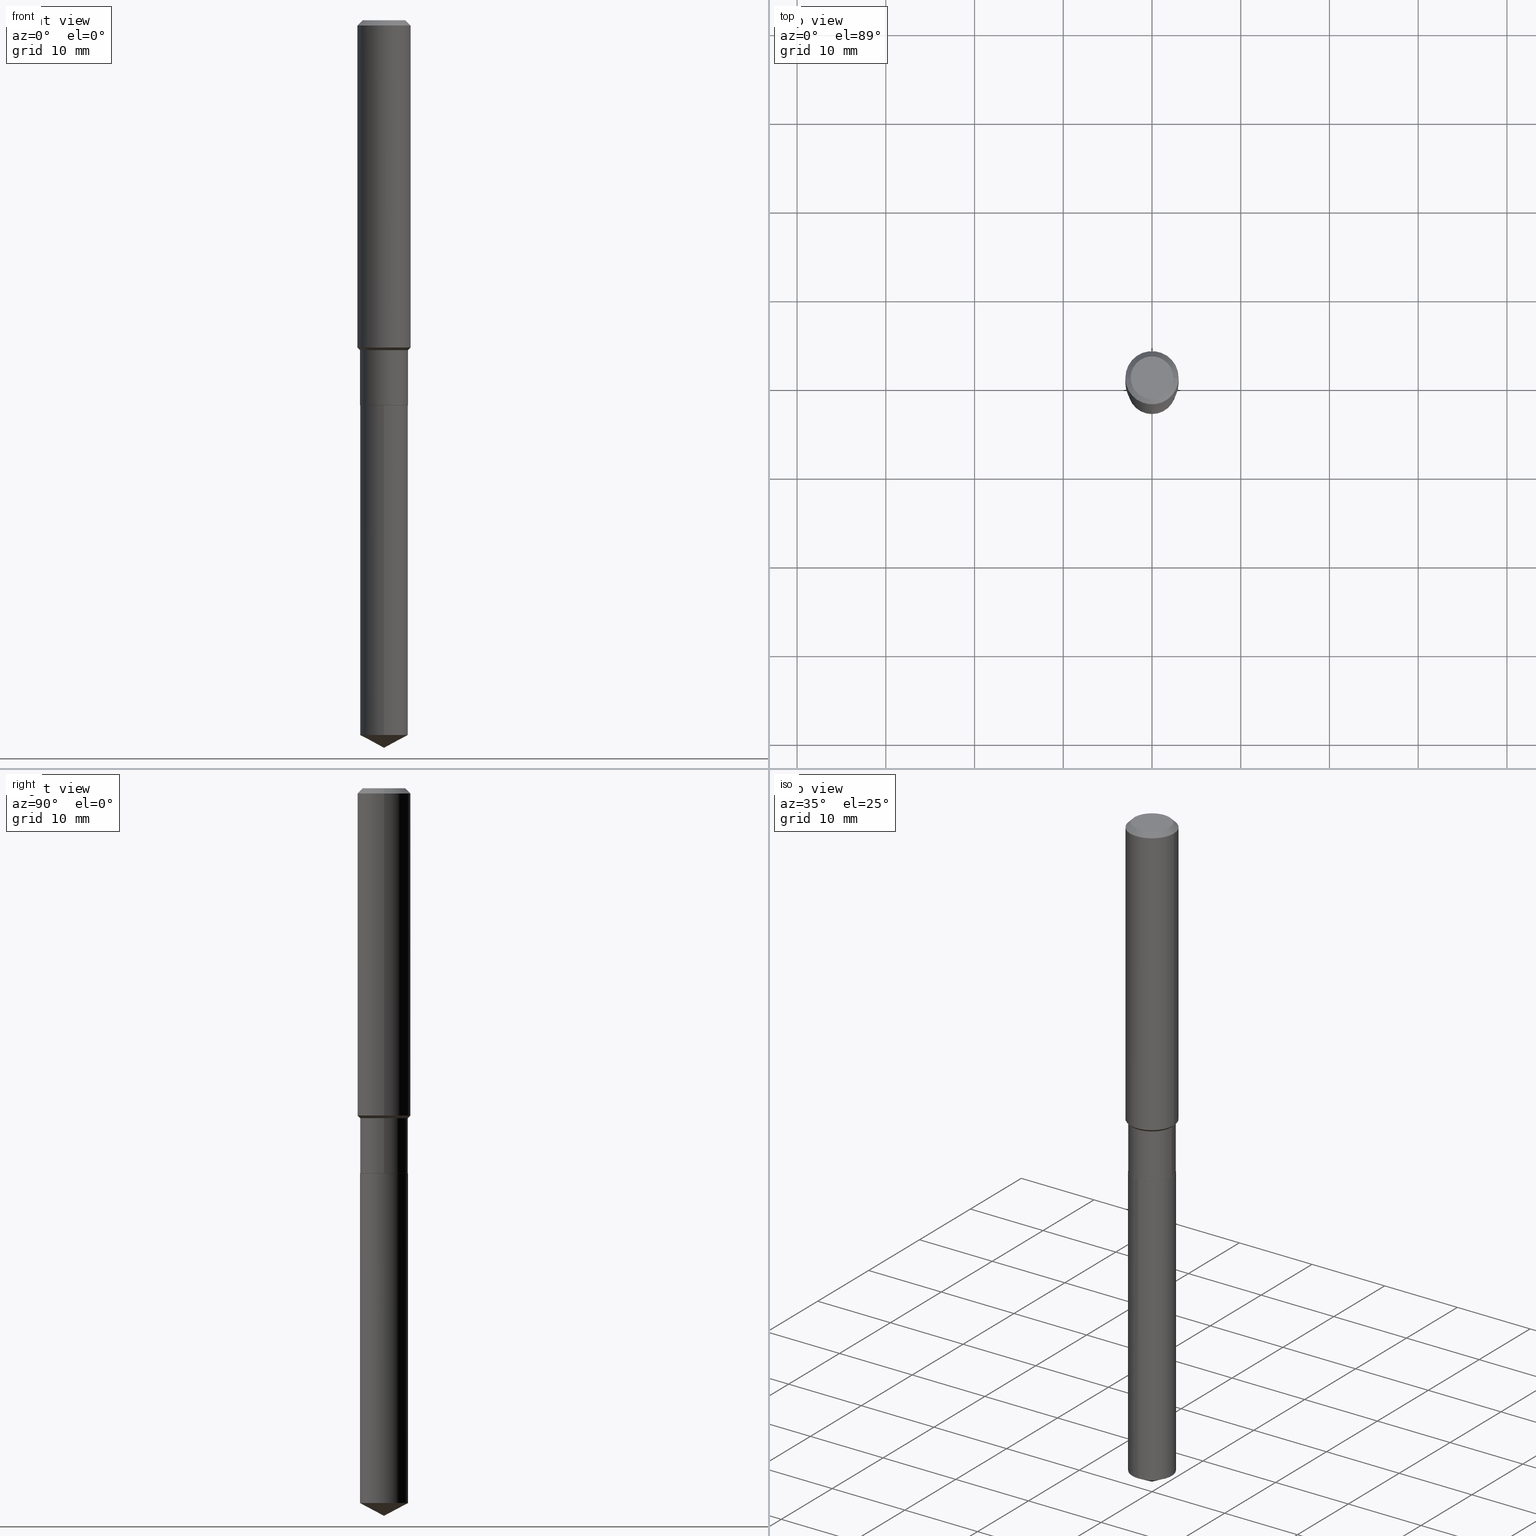
[diagram: canonical four-view strip — front | top / right | iso, engineering-drawing reading convention]
A machine part, canonical four-view strip (front | top / right | iso — engineering-drawing reading convention). The complete STEP part file that produces these views, byte-faithful:
ISO-10303-21;
HEADER;
FILE_DESCRIPTION (( 'STEP AP203' ),
    '1' );
FILE_NAME ('65024.STEP',
    '2024-04-24T19:54:59',
    ( '' ),
    ( '' ),
    'SwSTEP 2.0',
    'SolidWorks 2023',
    '' );
FILE_SCHEMA (( 'CONFIG_CONTROL_DESIGN' ));
ENDSEC;

DATA;
#1 = CLOSED_SHELL ( 'NONE', ( #170, #11, #102, #52, #485, #128, #354, #131, #418, #204, #32, #429 ) ) ;
#2 = CIRCLE ( 'NONE', #230, 0.1063000000000000056 ) ;
#3 = EDGE_LOOP ( 'NONE', ( #27, #325, #284 ) ) ;
#4 = APPROVAL_PERSON_ORGANIZATION ( #352, #110, #319 ) ;
#5 = DIRECTION ( 'NONE',  ( -6.982962677686267499E-15, -1.000000000000000000, 3.541896320645544303E-15 ) ) ;
#6 = PERSON_AND_ORGANIZATION ( #465, #426 ) ;
#7 = ORIENTED_EDGE ( 'NONE', *, *, #51, .F. ) ;
#8 = FACE_OUTER_BOUND ( 'NONE', #237, .T. ) ;
#9 = LINE ( 'NONE', #266, #476 ) ;
#10 = PERSON_AND_ORGANIZATION ( #465, #426 ) ;
#11 = ADVANCED_FACE ( 'NONE', ( #202 ), #342, .T. ) ;
#12 = DIRECTION ( 'NONE',  ( -2.445509504775063529E-29, 3.491423056145950316E-15, 1.000000000000000000 ) ) ;
#13 = AXIS2_PLACEMENT_3D ( 'NONE', #375, #288, #152 ) ;
#14 = COORDINATED_UNIVERSAL_TIME_OFFSET ( 5, 0, .BEHIND. ) ;
#15 = CC_DESIGN_APPROVAL ( #470, ( #22 ) ) ;
#16 = DATE_AND_TIME ( #136, #272 ) ;
#17 = CARTESIAN_POINT ( 'NONE',  ( 4.716267017698007905E-46, -6.733579360998555036E-32, -1.928573779297252010E-17 ) ) ;
#18 = DIRECTION ( 'NONE',  ( 0.000000000000000000, 0.000000000000000000, 1.000000000000000000 ) ) ;
#19 = PRODUCT_DEFINITION ( 'UNKNOWN', '', #72, #135 ) ;
#20 = AXIS2_PLACEMENT_3D ( 'NONE', #162, #383, #310 ) ;
#21 = DIRECTION ( 'NONE',  ( 2.445468806185136597E-29, -3.491481338843145583E-15, -1.000000000000000000 ) ) ;
#22 = SECURITY_CLASSIFICATION ( '', '', #359 ) ;
#23 = ORIENTED_EDGE ( 'NONE', *, *, #66, .T. ) ;
#24 = ORIENTED_EDGE ( 'NONE', *, *, #289, .T. ) ;
#25 = CC_DESIGN_PERSON_AND_ORGANIZATION_ASSIGNMENT ( #460, #200, ( #19 ) ) ;
#26 = CARTESIAN_POINT ( 'NONE',  ( -7.422889326380084277E-16, -0.1063000000000059592, -1.708599999999999897 ) ) ;
#27 = ORIENTED_EDGE ( 'NONE', *, *, #173, .F. ) ;
#28 = ORIENTED_EDGE ( 'NONE', *, *, #349, .F. ) ;
#29 = CIRCLE ( 'NONE', #363, 0.1063000000000000056 ) ;
#30 = CARTESIAN_POINT ( 'NONE',  ( 4.178328002247924925E-29, -5.965545015547399442E-15, -1.708600000000000119 ) ) ;
#31 = VERTEX_POINT ( 'NONE', #26 ) ;
#32 = ADVANCED_FACE ( 'NONE', ( #139 ), #469, .F. ) ;
#33 = EDGE_CURVE ( 'NONE', #210, #95, #144, .T. ) ;
#34 = AXIS2_PLACEMENT_3D ( 'NONE', #209, #179, #341 ) ;
#35 = CARTESIAN_POINT ( 'NONE',  ( 0.1180999999999999966, -8.926936027602933910E-16, -0.02362000000000014088 ) ) ;
#36 = VECTOR ( 'NONE', #381, 39.37007874015748143 ) ;
#37 = FACE_OUTER_BOUND ( 'NONE', #244, .T. ) ;
#38 = DIRECTION ( 'NONE',  ( -2.445509504775063529E-29, 3.491423056145950316E-15, 1.000000000000000000 ) ) ;
#39 = DIRECTION ( 'NONE',  ( -2.445468806185136877E-29, 3.491481338843145188E-15, 1.000000000000000000 ) ) ;
#40 = DIRECTION ( 'NONE',  ( 1.000000000000000000, -6.982962677686264344E-15, 0.000000000000000000 ) ) ;
#41 = FACE_OUTER_BOUND ( 'NONE', #68, .T. ) ;
#42 = COORDINATED_UNIVERSAL_TIME_OFFSET ( 5, 0, .BEHIND. ) ;
#43 = DIRECTION ( 'NONE',  ( -2.445509504775063529E-29, 3.491423056145950316E-15, 1.000000000000000000 ) ) ;
#44 = DIRECTION ( 'NONE',  ( -2.445468806185136877E-29, 3.491481338843145188E-15, 1.000000000000000000 ) ) ;
#45 = CARTESIAN_POINT ( 'NONE',  ( 4.178328002247924925E-29, -5.965545015547399442E-15, -1.708600000000000119 ) ) ;
#46 = LINE ( 'NONE', #263, #138 ) ;
#47 = CONICAL_SURFACE ( 'NONE', #190, 0.1062999999999999640, 0.7853981633974511656 ) ;
#48 = COORDINATED_UNIVERSAL_TIME_OFFSET ( 5, 0, .BEHIND. ) ;
#49 = PERSON_AND_ORGANIZATION ( #465, #426 ) ;
#50 = CALENDAR_DATE ( 2024, 24, 4 ) ;
#51 = EDGE_CURVE ( 'NONE', #449, #112, #188, .T. ) ;
#52 = ADVANCED_FACE ( 'NONE', ( #114 ), #55, .T. ) ;
#53 = APPROVAL_STATUS ( 'not_yet_approved' ) ;
#54 = ORIENTED_EDGE ( 'NONE', *, *, #311, .F. ) ;
#55 = CONICAL_SURFACE ( 'NONE', #332, 0.1062999999999999640, 0.7853981633974511656 ) ;
#56 = CONICAL_SURFACE ( 'NONE', #175, 0.1058000000000000052, 0.7853981633975507526 ) ;
#57 = ORIENTED_EDGE ( 'NONE', *, *, #349, .T. ) ;
#58 = ORIENTED_EDGE ( 'NONE', *, *, #315, .F. ) ;
#59 = ORIENTED_EDGE ( 'NONE', *, *, #395, .T. ) ;
#60 = EDGE_LOOP ( 'NONE', ( #322, #57, #296, #361 ) ) ;
#61 = DIRECTION ( 'NONE',  ( 0.7071067811865495711, -2.468850131082277965E-15, 0.7071067811865454633 ) ) ;
#62 = LOCAL_TIME ( 15, 54, 59.00000000000000000, #48 ) ;
#63 = EDGE_LOOP ( 'NONE', ( #140, #478 ) ) ;
#64 = CARTESIAN_POINT ( 'NONE',  ( 0.1058000000000000052, -6.704342466846605785E-15, -1.708600000000000119 ) ) ;
#65 = DIRECTION ( 'NONE',  ( -1.000000000000000000, 6.982962677686265922E-15, -4.876176775795935793E-29 ) ) ;
#66 = EDGE_CURVE ( 'NONE', #449, #279, #337, .T. ) ;
#67 = CARTESIAN_POINT ( 'NONE',  ( 0.09447999999999998066, -7.704367267948738690E-16, -1.928573779296752193E-17 ) ) ;
#68 = EDGE_LOOP ( 'NONE', ( #103, #267 ) ) ;
#69 = DIRECTION ( 'NONE',  ( 2.445468806185136597E-29, -3.491481338843145583E-15, -1.000000000000000000 ) ) ;
#70 = DIRECTION ( 'NONE',  ( 6.273719981627772387E-15, 0.8829475928589306521, 0.4694715627858840334 ) ) ;
#71 = CIRCLE ( 'NONE', #240, 0.1058000000000000052 ) ;
#72 = PRODUCT_DEFINITION_FORMATION_WITH_SPECIFIED_SOURCE ( 'ANY', '', #374, .NOT_KNOWN. ) ;
#73 = ORIENTED_EDGE ( 'NONE', *, *, #473, .F. ) ;
#74 = CARTESIAN_POINT ( 'NONE',  ( 7.756546856809809228E-29, -1.107412291490118614E-14, -3.171779287414385529 ) ) ;
#75 = CARTESIAN_POINT ( 'NONE',  ( 0.1058000000000000052, -6.704342466846605785E-15, -1.708600000000000119 ) ) ;
#76 = LINE ( 'NONE', #224, #271 ) ;
#77 = DIRECTION ( 'NONE',  ( -2.445468806185136597E-29, 3.491481338843145583E-15, 1.000000000000000000 ) ) ;
#78 = APPROVAL_ROLE ( '' ) ;
#79 = DIRECTION ( 'NONE',  ( -2.445509504775063529E-29, 3.491423056145950316E-15, 1.000000000000000000 ) ) ;
#80 = CARTESIAN_POINT ( 'NONE',  ( 5.776197320209327532E-31, -8.246878922347559293E-17, -0.02362000000000014088 ) ) ;
#81 = CONICAL_SURFACE ( 'NONE', #146, 0.1058000000000000052, 0.7853981633975507526 ) ;
#82 = APPROVAL_ROLE ( '' ) ;
#83 = CARTESIAN_POINT ( 'NONE',  ( 0.1181000000000001632, -5.895366240636649477E-15, -1.452299999999999924 ) ) ;
#84 = CC_DESIGN_PERSON_AND_ORGANIZATION_ASSIGNMENT ( #10, #389, ( #374 ) ) ;
#85 = DATE_TIME_ROLE ( 'creation_date' ) ;
#86 = LINE ( 'NONE', #161, #36 ) ;
#87 = APPROVAL_DATE_TIME ( #423, #470 ) ;
#88 = AXIS2_PLACEMENT_3D ( 'NONE', #427, #18, #90 ) ;
#89 = EDGE_CURVE ( 'NONE', #231, #358, #443, .T. ) ;
#90 = DIRECTION ( 'NONE',  ( 1.000000000000000000, 0.000000000000000000, 0.000000000000000000 ) ) ;
#91 = CARTESIAN_POINT ( 'NONE',  ( -0.1062999999999999640, -4.782531623426127570E-15, -1.464100000000000179 ) ) ;
#92 = ORIENTED_EDGE ( 'NONE', *, *, #238, .T. ) ;
#93 = ORIENTED_EDGE ( 'NONE', *, *, #483, .F. ) ;
#94 = EDGE_CURVE ( 'NONE', #95, #246, #109, .T. ) ;
#95 = VERTEX_POINT ( 'NONE', #407 ) ;
#96 = CIRCLE ( 'NONE', #357, 0.1180999999999999966 ) ;
#97 = ORIENTED_EDGE ( 'NONE', *, *, #160, .F. ) ;
#98 = VERTEX_POINT ( 'NONE', #326 ) ;
#99 = EDGE_LOOP ( 'NONE', ( #206, #360 ) ) ;
#100 = CONICAL_SURFACE ( 'NONE', #168, 0.1180999999999999966, 0.7853981633974460586 ) ;
#101 = CC_DESIGN_APPROVAL ( #110, ( #19 ) ) ;
#102 = ADVANCED_FACE ( 'NONE', ( #371 ), #214, .T. ) ;
#103 = ORIENTED_EDGE ( 'NONE', *, *, #382, .T. ) ;
#104 = DIRECTION ( 'NONE',  ( 1.000000000000000000, -6.982962677686263555E-15, 0.000000000000000000 ) ) ;
#105 = CYLINDRICAL_SURFACE ( 'NONE', #353, 0.1063000000000000056 ) ;
#106 = PRODUCT_DEFINITION_SHAPE ( 'NONE', 'NONE',  #19 ) ;
#107 = VERTEX_POINT ( 'NONE', #447 ) ;
#108 = DIRECTION ( 'NONE',  ( 1.000000000000000000, -6.982962677686263555E-15, 0.000000000000000000 ) ) ;
#109 = LINE ( 'NONE', #177, #391 ) ;
#110 = APPROVAL ( #53, 'UNSPECIFIED' ) ;
#111 = FACE_OUTER_BOUND ( 'NONE', #60, .T. ) ;
#112 = VERTEX_POINT ( 'NONE', #91 ) ;
#113 = DIRECTION ( 'NONE',  ( 2.445509504775063529E-29, -3.491423056145949921E-15, -1.000000000000000000 ) ) ;
#114 = FACE_OUTER_BOUND ( 'NONE', #433, .T. ) ;
#115 = FACE_OUTER_BOUND ( 'NONE', #390, .T. ) ;
#116 = CC_DESIGN_PERSON_AND_ORGANIZATION_ASSIGNMENT ( #49, #346, ( #22 ) ) ;
#117 = DIRECTION ( 'NONE',  ( -2.445468806185136597E-29, 3.491481338843145583E-15, 1.000000000000000000 ) ) ;
#118 = FACE_OUTER_BOUND ( 'NONE', #208, .T. ) ;
#119 = MANIFOLD_SOLID_BREP ( 'Body-Move/Copy2[1]', #270 ) ;
#120 = ORIENTED_EDGE ( 'NONE', *, *, #193, .T. ) ;
#121 = DIRECTION ( 'NONE',  ( 6.982962677686265922E-15, 1.000000000000000000, -3.491423056145949921E-15 ) ) ;
#122 = CARTESIAN_POINT ( 'NONE',  ( 4.178328002247924925E-29, -5.965545015547399442E-15, -1.708600000000000119 ) ) ;
#123 = DIRECTION ( 'NONE',  ( -2.445468806185136597E-29, 3.491481338843145583E-15, 1.000000000000000000 ) ) ;
#124 = DIRECTION ( 'NONE',  ( 1.000000000000000000, -6.982962677686264344E-15, 0.000000000000000000 ) ) ;
#125 = EDGE_CURVE ( 'NONE', #231, #98, #239, .T. ) ;
#126 = VECTOR ( 'NONE', #490, 39.37007874015748143 ) ;
#127 = AXIS2_PLACEMENT_3D ( 'NONE', #379, #159, #5 ) ;
#128 = ADVANCED_FACE ( 'NONE', ( #408 ), #189, .T. ) ;
#129 = DIRECTION ( 'NONE',  ( 1.000000000000000000, -6.982962677686270655E-15, 0.000000000000000000 ) ) ;
#130 = PERSON_AND_ORGANIZATION ( #465, #426 ) ;
#131 = ADVANCED_FACE ( 'NONE', ( #338 ), #225, .T. ) ;
#132 = PERSON_AND_ORGANIZATION ( #465, #426 ) ;
#133 = PRODUCT_RELATED_PRODUCT_CATEGORY ( 'detail', '', ( #374 ) ) ;
#134 = ORIENTED_EDGE ( 'NONE', *, *, #350, .F. ) ;
#135 = DESIGN_CONTEXT ( 'detailed design', #365, 'design' ) ;
#136 = CALENDAR_DATE ( 2024, 24, 4 ) ;
#137 = ORIENTED_EDGE ( 'NONE', *, *, #402, .F. ) ;
#138 = VECTOR ( 'NONE', #269, 39.37007874015748143 ) ;
#139 = FACE_OUTER_BOUND ( 'NONE', #63, .T. ) ;
#140 = ORIENTED_EDGE ( 'NONE', *, *, #125, .F. ) ;
#141 = CARTESIAN_POINT ( 'NONE',  ( 3.580410879135658789E-29, -5.111877828200250276E-15, -1.464100000000000179 ) ) ;
#142 = EDGE_CURVE ( 'NONE', #205, #246, #377, .T. ) ;
#143 = ORIENTED_EDGE ( 'NONE', *, *, #441, .T. ) ;
#144 = CIRCLE ( 'NONE', #401, 0.09447999999999998066 ) ;
#145 = DIRECTION ( 'NONE',  ( 1.000000000000000000, -6.982962677686263555E-15, 0.000000000000000000 ) ) ;
#146 = AXIS2_PLACEMENT_3D ( 'NONE', #194, #453, #489 ) ;
#147 = CYLINDRICAL_SURFACE ( 'NONE', #13, 0.1063000000000000056 ) ;
#148 = CARTESIAN_POINT ( 'NONE',  ( 7.553069281130638457E-16, 0.1062999999999889034, -3.171779287414385973 ) ) ;
#149 = CARTESIAN_POINT ( 'NONE',  ( 7.894839553790867022E-29, -1.127136105215597106E-14, -3.228299999999999947 ) ) ;
#150 = ORIENTED_EDGE ( 'NONE', *, *, #142, .F. ) ;
#151 = DIRECTION ( 'NONE',  ( -6.982962677686265922E-15, -1.000000000000000000, 2.569941668545873170E-15 ) ) ;
#152 = DIRECTION ( 'NONE',  ( -6.982962677686265922E-15, -1.000000000000000000, 2.569941668545873170E-15 ) ) ;
#153 = CARTESIAN_POINT ( 'NONE',  ( 7.894838334265338485E-29, -1.127136105215597106E-14, -3.228299999999999947 ) ) ;
#154 = CARTESIAN_POINT ( 'NONE',  ( 0.000000000000000000, 0.000000000000000000, 0.000000000000000000 ) ) ;
#155 = AXIS2_PLACEMENT_3D ( 'NONE', #306, #12, #422 ) ;
#156 = VERTEX_POINT ( 'NONE', #292 ) ;
#157 = CARTESIAN_POINT ( 'NONE',  ( 0.1062999999999999640, -5.854166760838299626E-15, -1.464100000000000179 ) ) ;
#158 = DATE_AND_TIME ( #386, #287 ) ;
#159 = DIRECTION ( 'NONE',  ( -2.445509504775063529E-29, 3.491423056145950316E-15, 1.000000000000000000 ) ) ;
#160 = EDGE_CURVE ( 'NONE', #107, #31, #366, .T. ) ;
#161 = CARTESIAN_POINT ( 'NONE',  ( -0.1062999999999999640, -4.356570900087264133E-15, -1.464100000000000179 ) ) ;
#162 = CARTESIAN_POINT ( 'NONE',  ( 5.776197320209327532E-31, -8.246878922347559293E-17, -0.02362000000000014088 ) ) ;
#163 = VECTOR ( 'NONE', #340, 39.37007874015748143 ) ;
#164 = APPROVAL_DATE_TIME ( #199, #110 ) ;
#165 = CC_DESIGN_DATE_AND_TIME_ASSIGNMENT ( #16, #85, ( #19 ) ) ;
#166 =( CONVERSION_BASED_UNIT ( 'INCH', #268 ) LENGTH_UNIT ( ) NAMED_UNIT ( #274 ) );
#167 = ORIENTED_EDGE ( 'NONE', *, *, #260, .F. ) ;
#168 = AXIS2_PLACEMENT_3D ( 'NONE', #185, #69, #182 ) ;
#169 = MECHANICAL_CONTEXT ( 'NONE', #243, 'mechanical' ) ;
#170 = ADVANCED_FACE ( 'NONE', ( #111 ), #56, .T. ) ;
#171 = ADVANCED_FACE ( 'NONE', ( #118 ), #147, .T. ) ;
#172 = EDGE_LOOP ( 'NONE', ( #339, #137, #396, #254 ) ) ;
#173 = EDGE_CURVE ( 'NONE', #403, #434, #215, .T. ) ;
#174 = ORIENTED_EDGE ( 'NONE', *, *, #251, .T. ) ;
#175 = AXIS2_PLACEMENT_3D ( 'NONE', #122, #440, #40 ) ;
#176 = EDGE_LOOP ( 'NONE', ( #276, #432, #73 ) ) ;
#177 = CARTESIAN_POINT ( 'NONE',  ( -0.1180999999999999966, 7.422191030112725094E-16, -0.02362000000000014088 ) ) ;
#178 = DIRECTION ( 'NONE',  ( 1.000000000000000000, -6.982962677686267499E-15, 4.876176775795935232E-29 ) ) ;
#179 = DIRECTION ( 'NONE',  ( -2.445468806185136597E-29, 3.491481338843145583E-15, 1.000000000000000000 ) ) ;
#180 = DIRECTION ( 'NONE',  ( 1.000000000000000000, -6.982962677686267499E-15, 4.875432709231658792E-29 ) ) ;
#181 = AXIS2_PLACEMENT_3D ( 'NONE', #154, #77, #178 ) ;
#182 = DIRECTION ( 'NONE',  ( -1.000000000000000000, 6.982962677686266711E-15, 0.000000000000000000 ) ) ;
#183 = DIRECTION ( 'NONE',  ( -6.982962677686267499E-15, -1.000000000000000000, 3.541896320645544303E-15 ) ) ;
#184 = ORIENTED_EDGE ( 'NONE', *, *, #275, .F. ) ;
#185 = CARTESIAN_POINT ( 'NONE',  ( 5.776197320209327532E-31, -8.246878922347559293E-17, -0.02362000000000014088 ) ) ;
#186 = CARTESIAN_POINT ( 'NONE',  ( -8.838513296614318830E-28, 1.261861400016949314E-13, 36.14177874015747705 ) ) ;
#187 = CARTESIAN_POINT ( 'NONE',  ( 7.756546856809809228E-29, -1.107412291490118614E-14, -3.171779287414385529 ) ) ;
#188 = CIRCLE ( 'NONE', #247, 0.1062999999999999640 ) ;
#189 = CYLINDRICAL_SURFACE ( 'NONE', #181, 0.1062999999999999917 ) ;
#190 = AXIS2_PLACEMENT_3D ( 'NONE', #217, #415, #108 ) ;
#191 = AXIS2_PLACEMENT_3D ( 'NONE', #343, #228, #303 ) ;
#192 = ADVANCED_FACE ( 'NONE', ( #115 ), #105, .T. ) ;
#193 = EDGE_CURVE ( 'NONE', #434, #242, #405, .T. ) ;
#194 = CARTESIAN_POINT ( 'NONE',  ( 4.178328002247924925E-29, -5.965545015547399442E-15, -1.708600000000000119 ) ) ;
#195 = DIRECTION ( 'NONE',  ( 1.000000000000000000, -6.982962677686269077E-15, 0.000000000000000000 ) ) ;
#196 = DIRECTION ( 'NONE',  ( -2.445468806185136597E-29, 3.491481338843145583E-15, 1.000000000000000000 ) ) ;
#197 = APPROVAL_STATUS ( 'not_yet_approved' ) ;
#198 = CONICAL_SURFACE ( 'NONE', #437, 74.04434902938388063, 1.082104136236488490 ) ;
#199 = DATE_AND_TIME ( #50, #62 ) ;
#200 = PERSON_AND_ORGANIZATION_ROLE ( 'creator' ) ;
#201 = ORIENTED_EDGE ( 'NONE', *, *, #277, .T. ) ;
#202 = FACE_OUTER_BOUND ( 'NONE', #479, .T. ) ;
#203 = CIRCLE ( 'NONE', #20, 0.1180999999999999966 ) ;
#204 = ADVANCED_FACE ( 'NONE', ( #372 ), #300, .F. ) ;
#205 = VERTEX_POINT ( 'NONE', #480 ) ;
#206 = ORIENTED_EDGE ( 'NONE', *, *, #402, .T. ) ;
#207 = ORIENTED_EDGE ( 'NONE', *, *, #33, .F. ) ;
#208 = EDGE_LOOP ( 'NONE', ( #435, #143, #452, #54 ) ) ;
#209 = CARTESIAN_POINT ( 'NONE',  ( 4.178328002247924925E-29, -5.965545015547399442E-15, -1.708600000000000119 ) ) ;
#210 = VERTEX_POINT ( 'NONE', #67 ) ;
#211 = VECTOR ( 'NONE', #446, 39.37007874015748854 ) ;
#212 = CC_DESIGN_PERSON_AND_ORGANIZATION_ASSIGNMENT ( #132, #331, ( #72 ) ) ;
#213 = CIRCLE ( 'NONE', #191, 0.1063000000000000056 ) ;
#214 = CYLINDRICAL_SURFACE ( 'NONE', #219, 0.1181000000000000799 ) ;
#215 = LINE ( 'NONE', #149, #481 ) ;
#216 = ORIENTED_EDGE ( 'NONE', *, *, #395, .F. ) ;
#217 = CARTESIAN_POINT ( 'NONE',  ( 3.580410879135658789E-29, -5.111877828200250276E-15, -1.464100000000000179 ) ) ;
#218 = FACE_OUTER_BOUND ( 'NONE', #3, .T. ) ;
#219 = AXIS2_PLACEMENT_3D ( 'NONE', #487, #294, #328 ) ;
#220 = PLANE ( 'NONE',  #461 ) ;
#221 = AXIS2_PLACEMENT_3D ( 'NONE', #253, #445, #448 ) ;
#222 = CIRCLE ( 'NONE', #299, 0.1063000000000000056 ) ;
#223 = DIRECTION ( 'NONE',  ( -2.445509504775063809E-29, 3.491423056145949921E-15, 1.000000000000000000 ) ) ;
#224 = CARTESIAN_POINT ( 'NONE',  ( 0.1062999999999999917, -7.422889326380501387E-16, 5.183375912671078649E-30 ) ) ;
#225 = CYLINDRICAL_SURFACE ( 'NONE', #221, 0.1181000000000000799 ) ;
#226 = CARTESIAN_POINT ( 'NONE',  ( 3.551554347222674167E-29, -5.070678348401900425E-15, -1.452299999999999924 ) ) ;
#227 = ADVANCED_FACE ( 'NONE', ( #218 ), #198, .T. ) ;
#228 = DIRECTION ( 'NONE',  ( -2.445468806185136597E-29, 3.491481338843145583E-15, 1.000000000000000000 ) ) ;
#229 = DIRECTION ( 'NONE',  ( 1.000000000000000000, -6.982962677686266711E-15, 0.000000000000000000 ) ) ;
#230 = AXIS2_PLACEMENT_3D ( 'NONE', #234, #351, #195 ) ;
#231 = VERTEX_POINT ( 'NONE', #75 ) ;
#232 = CALENDAR_DATE ( 2024, 24, 4 ) ;
#233 = CARTESIAN_POINT ( 'NONE',  ( -0.1180999999999999966, -1.737422597880008561E-15, -0.02362000000000014088 ) ) ;
#234 = CARTESIAN_POINT ( 'NONE',  ( 4.177105267844832684E-29, -5.963799274877977939E-15, -1.708100000000000174 ) ) ;
#235 = AXIS2_PLACEMENT_3D ( 'NONE', #330, #451, #65 ) ;
#236 = APPLICATION_PROTOCOL_DEFINITION ( 'international standard', 'config_control_design', 1994, #243 ) ;
#237 = EDGE_LOOP ( 'NONE', ( #201, #477, #7, #216 ) ) ;
#238 = EDGE_CURVE ( 'NONE', #210, #282, #368, .T. ) ;
#239 = CIRCLE ( 'NONE', #34, 0.1058000000000000052 ) ;
#240 = AXIS2_PLACEMENT_3D ( 'NONE', #45, #196, #124 ) ;
#241 = ORIENTED_EDGE ( 'NONE', *, *, #142, .T. ) ;
#242 = VERTEX_POINT ( 'NONE', #457 ) ;
#243 = APPLICATION_CONTEXT ( 'configuration controlled 3d designs of mechanical parts and assemblies' ) ;
#244 = EDGE_LOOP ( 'NONE', ( #327, #430, #23, #388 ) ) ;
#245 = DIRECTION ( 'NONE',  ( -2.438088387897960049E-29, 3.491481338843145188E-15, 1.000000000000000000 ) ) ;
#246 = VERTEX_POINT ( 'NONE', #233 ) ;
#247 = AXIS2_PLACEMENT_3D ( 'NONE', #141, #399, #145 ) ;
#248 = AXIS2_PLACEMENT_3D ( 'NONE', #226, #259, #482 ) ;
#249 = AXIS2_PLACEMENT_3D ( 'NONE', #456, #265, #291 ) ;
#250 = EDGE_CURVE ( 'NONE', #98, #231, #71, .T. ) ;
#251 = EDGE_CURVE ( 'NONE', #112, #205, #86, .T. ) ;
#252 = DIRECTION ( 'NONE',  ( 1.000000000000000000, -6.982962677686267499E-15, 4.875432709231658792E-29 ) ) ;
#253 = CARTESIAN_POINT ( 'NONE',  ( 0.000000000000000000, 0.000000000000000000, 0.000000000000000000 ) ) ;
#254 = ORIENTED_EDGE ( 'NONE', *, *, #315, .T. ) ;
#255 = DIRECTION ( 'NONE',  ( -6.982962677686265922E-15, -1.000000000000000000, 5.139883337091746339E-15 ) ) ;
#256 = DIRECTION ( 'NONE',  ( -0.7071067811865459074, 2.468850131082240100E-15, -0.7071067811865491270 ) ) ;
#257 = CIRCLE ( 'NONE', #248, 0.1181000000000001632 ) ;
#258 = CARTESIAN_POINT ( 'NONE',  ( -7.422889326380084277E-16, -0.1063000000000059592, -1.708599999999999897 ) ) ;
#259 = DIRECTION ( 'NONE',  ( -2.445468806185136597E-29, 3.491481338843145583E-15, 1.000000000000000000 ) ) ;
#260 = EDGE_CURVE ( 'NONE', #156, #112, #9, .T. ) ;
#261 = CARTESIAN_POINT ( 'NONE',  ( -0.1181000000000000799, 8.391509709326788873E-16, -5.809262341591047988E-30 ) ) ;
#262 = FACE_OUTER_BOUND ( 'NONE', #302, .T. ) ;
#263 = CARTESIAN_POINT ( 'NONE',  ( 0.1181000000000000799, -8.246878922347486570E-16, 5.758764772215004644E-30 ) ) ;
#264 = ORIENTED_EDGE ( 'NONE', *, *, #89, .T. ) ;
#265 = DIRECTION ( 'NONE',  ( -2.445468806185136597E-29, 3.491481338843145583E-15, 1.000000000000000000 ) ) ;
#266 = CARTESIAN_POINT ( 'NONE',  ( -0.1062999999999999917, 7.553069281129864387E-16, -5.228828000940964357E-30 ) ) ;
#267 = ORIENTED_EDGE ( 'NONE', *, *, #311, .T. ) ;
#268 = LENGTH_MEASURE_WITH_UNIT ( LENGTH_MEASURE( 0.02539999999999999897 ), #335 );
#269 = DIRECTION ( 'NONE',  ( -2.445468806185136877E-29, 3.491481338843145188E-15, 1.000000000000000000 ) ) ;
#270 = CLOSED_SHELL ( 'NONE', ( #192, #329, #227, #171, #454 ) ) ;
#271 = VECTOR ( 'NONE', #39, 39.37007874015748143 ) ;
#272 = LOCAL_TIME ( 15, 54, 59.00000000000000000, #471 ) ;
#273 = MANIFOLD_SOLID_BREP ( 'Body-Move/Copy2[2]', #1 ) ;
#274 = DIMENSIONAL_EXPONENTS ( 1.000000000000000000, 0.000000000000000000, 0.000000000000000000, 0.000000000000000000, 0.000000000000000000, 0.000000000000000000, 0.000000000000000000 ) ;
#275 = EDGE_CURVE ( 'NONE', #279, #282, #46, .T. ) ;
#276 = ORIENTED_EDGE ( 'NONE', *, *, #400, .F. ) ;
#277 = EDGE_CURVE ( 'NONE', #358, #156, #2, .T. ) ;
#278 = PERSON_AND_ORGANIZATION ( #465, #426 ) ;
#279 = VERTEX_POINT ( 'NONE', #83 ) ;
#280 = ORIENTED_EDGE ( 'NONE', *, *, #250, .T. ) ;
#281 = EDGE_LOOP ( 'NONE', ( #150, #378, #397, #58 ) ) ;
#282 = VERTEX_POINT ( 'NONE', #417 ) ;
#283 = DIRECTION ( 'NONE',  ( 1.000000000000000000, -6.982962677686265922E-15, 4.876176775795935793E-29 ) ) ;
#284 = ORIENTED_EDGE ( 'NONE', *, *, #441, .F. ) ;
#285 = ORIENTED_EDGE ( 'NONE', *, *, #66, .F. ) ;
#286 = CIRCLE ( 'NONE', #334, 0.1063000000000000056 ) ;
#287 = LOCAL_TIME ( 15, 54, 59.00000000000000000, #42 ) ;
#288 = DIRECTION ( 'NONE',  ( -2.445509504775063529E-29, 3.491423056145950316E-15, 1.000000000000000000 ) ) ;
#289 = EDGE_CURVE ( 'NONE', #282, #246, #96, .T. ) ;
#290 = ORIENTED_EDGE ( 'NONE', *, *, #483, .T. ) ;
#291 = DIRECTION ( 'NONE',  ( 1.000000000000000000, -6.982962677686267499E-15, 4.876176775795935232E-29 ) ) ;
#292 = CARTESIAN_POINT ( 'NONE',  ( -0.1063000000000000056, -4.782531623426127570E-15, -1.708100000000000174 ) ) ;
#293 = CARTESIAN_POINT ( 'NONE',  ( 7.894699259043839638E-29, -1.127156021578882900E-14, -3.228299999999999947 ) ) ;
#294 = DIRECTION ( 'NONE',  ( -2.445468806185136597E-29, 3.491481338843145583E-15, 1.000000000000000000 ) ) ;
#295 = DIRECTION ( 'NONE',  ( -6.982962677686265922E-15, -1.000000000000000000, 2.569941668545873170E-15 ) ) ;
#296 = ORIENTED_EDGE ( 'NONE', *, *, #277, .F. ) ;
#297 = CARTESIAN_POINT ( 'NONE',  ( 0.1063000000000000056, -6.706088207516028077E-15, -1.708100000000000174 ) ) ;
#298 = VECTOR ( 'NONE', #223, 39.37007874015748143 ) ;
#299 = AXIS2_PLACEMENT_3D ( 'NONE', #187, #347, #255 ) ;
#300 = PLANE ( 'NONE',  #235 ) ;
#301 = CC_DESIGN_PERSON_AND_ORGANIZATION_ASSIGNMENT ( #130, #466, ( #72 ) ) ;
#302 = EDGE_LOOP ( 'NONE', ( #28, #280, #264, #93 ) ) ;
#303 = DIRECTION ( 'NONE',  ( 1.000000000000000000, -6.982962677686269077E-15, 0.000000000000000000 ) ) ;
#304 = APPROVAL_STATUS ( 'not_yet_approved' ) ;
#305 = CYLINDRICAL_SURFACE ( 'NONE', #249, 0.1062999999999999917 ) ;
#306 = CARTESIAN_POINT ( 'NONE',  ( 4.178328002247924925E-29, -5.965545015547399442E-15, -1.708600000000000119 ) ) ;
#307 = DATE_TIME_ROLE ( 'classification_date' ) ;
#308 = APPLICATION_PROTOCOL_DEFINITION ( 'international standard', 'config_control_design', 1994, #365 ) ;
#309 = VECTOR ( 'NONE', #345, 39.37007874015748143 ) ;
#310 = DIRECTION ( 'NONE',  ( 1.000000000000000000, -6.982962677686266711E-15, 0.000000000000000000 ) ) ;
#311 = EDGE_CURVE ( 'NONE', #242, #31, #369, .T. ) ;
#312 =( NAMED_UNIT ( * ) SI_UNIT ( $, .STERADIAN. ) SOLID_ANGLE_UNIT ( ) );
#313 = DATE_AND_TIME ( #232, #393 ) ;
#314 = SHAPE_DEFINITION_REPRESENTATION ( #106, #321 ) ;
#315 = EDGE_CURVE ( 'NONE', #246, #282, #203, .T. ) ;
#316 = EDGE_CURVE ( 'NONE', #205, #279, #425, .T. ) ;
#317 = ORIENTED_EDGE ( 'NONE', *, *, #289, .F. ) ;
#318 =( GEOMETRIC_REPRESENTATION_CONTEXT ( 3 ) GLOBAL_UNCERTAINTY_ASSIGNED_CONTEXT ( ( #455 ) ) GLOBAL_UNIT_ASSIGNED_CONTEXT ( ( #166, #384, #312 ) ) REPRESENTATION_CONTEXT ( 'NONE', 'WORKASPACE' ) );
#319 = APPROVAL_ROLE ( '' ) ;
#320 = CARTESIAN_POINT ( 'NONE',  ( 4.178328002247924925E-29, -5.965545015547399442E-15, -1.708600000000000119 ) ) ;
#321 = ADVANCED_BREP_SHAPE_REPRESENTATION ( '65024', ( #119, #273, #88 ), #318 ) ;
#322 = ORIENTED_EDGE ( 'NONE', *, *, #125, .T. ) ;
#323 = CIRCLE ( 'NONE', #380, 0.1062999999999999640 ) ;
#324 = APPROVAL_PERSON_ORGANIZATION ( #6, #470, #78 ) ;
#325 = ORIENTED_EDGE ( 'NONE', *, *, #400, .T. ) ;
#326 = CARTESIAN_POINT ( 'NONE',  ( -0.1058000000000000052, -5.211141573939102208E-15, -1.708600000000000119 ) ) ;
#327 = ORIENTED_EDGE ( 'NONE', *, *, #251, .F. ) ;
#328 = DIRECTION ( 'NONE',  ( 1.000000000000000000, -6.982962677686266711E-15, 4.876176775795936353E-29 ) ) ;
#329 = ADVANCED_FACE ( 'NONE', ( #336 ), #333, .T. ) ;
#330 = CARTESIAN_POINT ( 'NONE',  ( 2.358133508849003952E-46, -3.366789680499277518E-32, -9.642868896486260050E-18 ) ) ;
#331 = PERSON_AND_ORGANIZATION_ROLE ( 'design_supplier' ) ;
#332 = AXIS2_PLACEMENT_3D ( 'NONE', #412, #439, #104 ) ;
#333 = CONICAL_SURFACE ( 'NONE', #127, 74.04434902938388063, 1.082104136236488490 ) ;
#334 = AXIS2_PLACEMENT_3D ( 'NONE', #74, #79, #376 ) ;
#335 =( LENGTH_UNIT ( ) NAMED_UNIT ( * ) SI_UNIT ( $, .METRE. ) );
#336 = FACE_OUTER_BOUND ( 'NONE', #176, .T. ) ;
#337 = LINE ( 'NONE', #404, #419 ) ;
#338 = FACE_OUTER_BOUND ( 'NONE', #281, .T. ) ;
#339 = ORIENTED_EDGE ( 'NONE', *, *, #238, .F. ) ;
#340 = DIRECTION ( 'NONE',  ( -0.7071067811866199593, 7.493145998870616062E-15, 0.7071067811864750752 ) ) ;
#341 = DIRECTION ( 'NONE',  ( 1.000000000000000000, -6.982962677686264344E-15, 0.000000000000000000 ) ) ;
#342 = CONICAL_SURFACE ( 'NONE', #467, 0.1180999999999999966, 0.7853981633974460586 ) ;
#343 = CARTESIAN_POINT ( 'NONE',  ( 4.177105267844832684E-29, -5.963799274877977939E-15, -1.708100000000000174 ) ) ;
#344 = APPROVAL_PERSON_ORGANIZATION ( #278, #387, #82 ) ;
#345 = DIRECTION ( 'NONE',  ( -2.445509504775063809E-29, 3.491423056145949921E-15, 1.000000000000000000 ) ) ;
#346 = PERSON_AND_ORGANIZATION_ROLE ( 'classification_officer' ) ;
#347 = DIRECTION ( 'NONE',  ( -2.445509504775063529E-29, 3.491423056145950316E-15, 1.000000000000000000 ) ) ;
#348 = DIRECTION ( 'NONE',  ( 0.7071067811865459074, -7.319954787623249734E-15, -0.7071067811865491270 ) ) ;
#349 = EDGE_CURVE ( 'NONE', #98, #156, #420, .T. ) ;
#350 = EDGE_CURVE ( 'NONE', #279, #205, #257, .T. ) ;
#351 = DIRECTION ( 'NONE',  ( -2.445468806185136597E-29, 3.491481338843145583E-15, 1.000000000000000000 ) ) ;
#352 = PERSON_AND_ORGANIZATION ( #465, #426 ) ;
#353 = AXIS2_PLACEMENT_3D ( 'NONE', #30, #484, #295 ) ;
#354 = ADVANCED_FACE ( 'NONE', ( #37 ), #47, .T. ) ;
#355 = EDGE_LOOP ( 'NONE', ( #414, #241, #317, #184 ) ) ;
#356 = CARTESIAN_POINT ( 'NONE',  ( 5.776197320209327532E-31, -8.246878922347559293E-17, -0.02362000000000014088 ) ) ;
#357 = AXIS2_PLACEMENT_3D ( 'NONE', #80, #424, #229 ) ;
#358 = VERTEX_POINT ( 'NONE', #297 ) ;
#359 = SECURITY_CLASSIFICATION_LEVEL ( 'unclassified' ) ;
#360 = ORIENTED_EDGE ( 'NONE', *, *, #33, .T. ) ;
#361 = ORIENTED_EDGE ( 'NONE', *, *, #89, .F. ) ;
#362 = DIRECTION ( 'NONE',  ( -1.000000000000000000, 6.982962677686266711E-15, 0.000000000000000000 ) ) ;
#363 = AXIS2_PLACEMENT_3D ( 'NONE', #411, #43, #151 ) ;
#364 = EDGE_CURVE ( 'NONE', #112, #449, #323, .T. ) ;
#365 = APPLICATION_CONTEXT ( 'configuration controlled 3d designs of mechanical parts and assemblies' ) ;
#366 = LINE ( 'NONE', #258, #309 ) ;
#367 = CARTESIAN_POINT ( 'NONE',  ( 4.178328002247924925E-29, -5.965545015547399442E-15, -1.708600000000000119 ) ) ;
#368 = LINE ( 'NONE', #35, #459 ) ;
#369 = CIRCLE ( 'NONE', #155, 0.1063000000000000056 ) ;
#370 = LINE ( 'NONE', #293, #211 ) ;
#371 = FACE_OUTER_BOUND ( 'NONE', #355, .T. ) ;
#372 = FACE_OUTER_BOUND ( 'NONE', #99, .T. ) ;
#373 = CARTESIAN_POINT ( 'NONE',  ( -0.1058000000000000052, -5.213790801113213409E-15, -1.708600000000000119 ) ) ;
#374 = PRODUCT ( '65024', '65024', '', ( #169 ) ) ;
#375 = CARTESIAN_POINT ( 'NONE',  ( 4.178328002247924925E-29, -5.965545015547399442E-15, -1.708600000000000119 ) ) ;
#376 = DIRECTION ( 'NONE',  ( -6.982962677686265922E-15, -1.000000000000000000, 5.139883337091746339E-15 ) ) ;
#377 = LINE ( 'NONE', #261, #409 ) ;
#378 = ORIENTED_EDGE ( 'NONE', *, *, #316, .T. ) ;
#379 = CARTESIAN_POINT ( 'NONE',  ( -8.838513296614318830E-28, 1.261861400016949314E-13, 36.14177874015747705 ) ) ;
#380 = AXIS2_PLACEMENT_3D ( 'NONE', #450, #117, #486 ) ;
#381 = DIRECTION ( 'NONE',  ( -0.7071067811865495711, 7.493145998870362049E-15, 0.7071067811865454633 ) ) ;
#382 = EDGE_CURVE ( 'NONE', #31, #242, #29, .T. ) ;
#383 = DIRECTION ( 'NONE',  ( -2.445468806185136597E-29, 3.491481338843145583E-15, 1.000000000000000000 ) ) ;
#384 =( NAMED_UNIT ( * ) PLANE_ANGLE_UNIT ( ) SI_UNIT ( $, .RADIAN. ) );
#385 = CARTESIAN_POINT ( 'NONE',  ( 3.551554347222674167E-29, -5.070678348401900425E-15, -1.452299999999999924 ) ) ;
#386 = CALENDAR_DATE ( 2024, 24, 4 ) ;
#387 = APPROVAL ( #197, 'UNSPECIFIED' ) ;
#388 = ORIENTED_EDGE ( 'NONE', *, *, #316, .F. ) ;
#389 = PERSON_AND_ORGANIZATION_ROLE ( 'design_owner' ) ;
#390 = EDGE_LOOP ( 'NONE', ( #428, #120, #474, #97 ) ) ;
#391 = VECTOR ( 'NONE', #256, 39.37007874015748143 ) ;
#392 = AXIS2_PLACEMENT_3D ( 'NONE', #406, #123, #252 ) ;
#393 = LOCAL_TIME ( 15, 54, 59.00000000000000000, #14 ) ;
#394 = ORIENTED_EDGE ( 'NONE', *, *, #94, .F. ) ;
#395 = EDGE_CURVE ( 'NONE', #358, #449, #76, .T. ) ;
#396 = ORIENTED_EDGE ( 'NONE', *, *, #94, .T. ) ;
#397 = ORIENTED_EDGE ( 'NONE', *, *, #275, .T. ) ;
#398 = ORIENTED_EDGE ( 'NONE', *, *, #364, .F. ) ;
#399 = DIRECTION ( 'NONE',  ( -2.445468806185136597E-29, 3.491481338843145583E-15, 1.000000000000000000 ) ) ;
#400 = EDGE_CURVE ( 'NONE', #403, #107, #370, .T. ) ;
#401 = AXIS2_PLACEMENT_3D ( 'NONE', #17, #472, #180 ) ;
#402 = EDGE_CURVE ( 'NONE', #95, #210, #468, .T. ) ;
#403 = VERTEX_POINT ( 'NONE', #153 ) ;
#404 = CARTESIAN_POINT ( 'NONE',  ( 0.1062999999999999640, -5.854166760838299626E-15, -1.464100000000000179 ) ) ;
#405 = LINE ( 'NONE', #413, #298 ) ;
#406 = CARTESIAN_POINT ( 'NONE',  ( 4.716267017698007905E-46, -6.733579360998555036E-32, -1.928573779297252010E-17 ) ) ;
#407 = CARTESIAN_POINT ( 'NONE',  ( -0.09447999999999998066, 7.009847083995354710E-16, -1.928573779297727792E-17 ) ) ;
#408 = FACE_OUTER_BOUND ( 'NONE', #475, .T. ) ;
#409 = VECTOR ( 'NONE', #488, 39.37007874015748143 ) ;
#410 = CC_DESIGN_SECURITY_CLASSIFICATION ( #22, ( #72 ) ) ;
#411 = CARTESIAN_POINT ( 'NONE',  ( 4.178328002247924925E-29, -5.965545015547399442E-15, -1.708600000000000119 ) ) ;
#412 = CARTESIAN_POINT ( 'NONE',  ( 3.580410879135658789E-29, -5.111877828200250276E-15, -1.464100000000000179 ) ) ;
#413 = CARTESIAN_POINT ( 'NONE',  ( 7.553069281130281498E-16, 0.1062999999999940520, -1.708600000000000563 ) ) ;
#414 = ORIENTED_EDGE ( 'NONE', *, *, #350, .T. ) ;
#415 = DIRECTION ( 'NONE',  ( -2.445468806185136597E-29, 3.491481338843145583E-15, 1.000000000000000000 ) ) ;
#416 = FACE_OUTER_BOUND ( 'NONE', #172, .T. ) ;
#417 = CARTESIAN_POINT ( 'NONE',  ( 0.1180999999999999966, -9.071566814582237199E-16, -0.02362000000000014088 ) ) ;
#418 = ADVANCED_FACE ( 'NONE', ( #416 ), #100, .T. ) ;
#419 = VECTOR ( 'NONE', #61, 39.37007874015748143 ) ;
#420 = LINE ( 'NONE', #373, #163 ) ;
#421 = AXIS2_PLACEMENT_3D ( 'NONE', #385, #462, #129 ) ;
#422 = DIRECTION ( 'NONE',  ( -6.982962677686265922E-15, -1.000000000000000000, 2.569941668545873170E-15 ) ) ;
#423 = DATE_AND_TIME ( #463, #438 ) ;
#424 = DIRECTION ( 'NONE',  ( -2.445468806185136597E-29, 3.491481338843145583E-15, 1.000000000000000000 ) ) ;
#425 = CIRCLE ( 'NONE', #421, 0.1181000000000001632 ) ;
#426 = ORGANIZATION ( 'UNSPECIFIED', 'UNSPECIFIED', '' ) ;
#427 = CARTESIAN_POINT ( 'NONE',  ( 0.000000000000000000, 0.000000000000000000, 0.000000000000000000 ) ) ;
#428 = ORIENTED_EDGE ( 'NONE', *, *, #473, .T. ) ;
#429 = ADVANCED_FACE ( 'NONE', ( #262 ), #81, .T. ) ;
#430 = ORIENTED_EDGE ( 'NONE', *, *, #364, .T. ) ;
#431 = CC_DESIGN_APPROVAL ( #387, ( #72 ) ) ;
#432 = ORIENTED_EDGE ( 'NONE', *, *, #173, .T. ) ;
#433 = EDGE_LOOP ( 'NONE', ( #442, #174, #134, #285 ) ) ;
#434 = VERTEX_POINT ( 'NONE', #148 ) ;
#435 = ORIENTED_EDGE ( 'NONE', *, *, #193, .F. ) ;
#436 = AXIS2_PLACEMENT_3D ( 'NONE', #320, #245, #283 ) ;
#437 = AXIS2_PLACEMENT_3D ( 'NONE', #186, #38, #183 ) ;
#438 = LOCAL_TIME ( 15, 54, 59.00000000000000000, #458 ) ;
#439 = DIRECTION ( 'NONE',  ( -2.445468806185136597E-29, 3.491481338843145583E-15, 1.000000000000000000 ) ) ;
#440 = DIRECTION ( 'NONE',  ( -2.445468806185136597E-29, 3.491481338843145583E-15, 1.000000000000000000 ) ) ;
#441 = EDGE_CURVE ( 'NONE', #434, #107, #286, .T. ) ;
#442 = ORIENTED_EDGE ( 'NONE', *, *, #51, .T. ) ;
#443 = LINE ( 'NONE', #64, #126 ) ;
#444 = CC_DESIGN_DATE_AND_TIME_ASSIGNMENT ( #158, #307, ( #22 ) ) ;
#445 = DIRECTION ( 'NONE',  ( -2.445468806185136597E-29, 3.491481338843145583E-15, 1.000000000000000000 ) ) ;
#446 = DIRECTION ( 'NONE',  ( -6.165590087286841551E-15, -0.8829475928589272105, 0.4694715627858901952 ) ) ;
#447 = CARTESIAN_POINT ( 'NONE',  ( -7.422889326379726331E-16, -0.1063000000000110662, -3.171779287414385085 ) ) ;
#448 = DIRECTION ( 'NONE',  ( 1.000000000000000000, -6.982962677686266711E-15, 4.876176775795936353E-29 ) ) ;
#449 = VERTEX_POINT ( 'NONE', #157 ) ;
#450 = CARTESIAN_POINT ( 'NONE',  ( 3.580410879135658789E-29, -5.111877828200250276E-15, -1.464100000000000179 ) ) ;
#451 = DIRECTION ( 'NONE',  ( 2.438088387897960049E-29, -3.491481338843145188E-15, -1.000000000000000000 ) ) ;
#452 = ORIENTED_EDGE ( 'NONE', *, *, #160, .T. ) ;
#453 = DIRECTION ( 'NONE',  ( -2.445468806185136597E-29, 3.491481338843145583E-15, 1.000000000000000000 ) ) ;
#454 = ADVANCED_FACE ( 'NONE', ( #41 ), #220, .F. ) ;
#455 = UNCERTAINTY_MEASURE_WITH_UNIT (LENGTH_MEASURE( 1.000000000000000082E-05 ), #166, 'distance_accuracy_value', 'NONE');
#456 = CARTESIAN_POINT ( 'NONE',  ( 0.000000000000000000, 0.000000000000000000, 0.000000000000000000 ) ) ;
#457 = CARTESIAN_POINT ( 'NONE',  ( 7.553069281130643387E-16, 0.1062999999999940659, -1.708600000000000563 ) ) ;
#458 = COORDINATED_UNIVERSAL_TIME_OFFSET ( 5, 0, .BEHIND. ) ;
#459 = VECTOR ( 'NONE', #348, 39.37007874015748143 ) ;
#460 = PERSON_AND_ORGANIZATION ( #465, #426 ) ;
#461 = AXIS2_PLACEMENT_3D ( 'NONE', #367, #113, #121 ) ;
#462 = DIRECTION ( 'NONE',  ( -2.445468806185136597E-29, 3.491481338843145583E-15, 1.000000000000000000 ) ) ;
#463 = CALENDAR_DATE ( 2024, 24, 4 ) ;
#464 = APPROVAL_DATE_TIME ( #313, #387 ) ;
#465 = PERSON ( 'UNSPECIFIED', 'UNSPECIFIED', 'UNSPECIFIED', ('UNSPECIFIED'), ('UNSPECIFIED'), ('UNSPECIFIED') ) ;
#466 = PERSON_AND_ORGANIZATION_ROLE ( 'creator' ) ;
#467 = AXIS2_PLACEMENT_3D ( 'NONE', #356, #21, #362 ) ;
#468 = CIRCLE ( 'NONE', #392, 0.09447999999999998066 ) ;
#469 = PLANE ( 'NONE',  #436 ) ;
#470 = APPROVAL ( #304, 'UNSPECIFIED' ) ;
#471 = COORDINATED_UNIVERSAL_TIME_OFFSET ( 5, 0, .BEHIND. ) ;
#472 = DIRECTION ( 'NONE',  ( -2.445468806185136597E-29, 3.491481338843145583E-15, 1.000000000000000000 ) ) ;
#473 = EDGE_CURVE ( 'NONE', #107, #434, #222, .T. ) ;
#474 = ORIENTED_EDGE ( 'NONE', *, *, #382, .F. ) ;
#475 = EDGE_LOOP ( 'NONE', ( #167, #290, #59, #398 ) ) ;
#476 = VECTOR ( 'NONE', #44, 39.37007874015748143 ) ;
#477 = ORIENTED_EDGE ( 'NONE', *, *, #260, .T. ) ;
#478 = ORIENTED_EDGE ( 'NONE', *, *, #250, .F. ) ;
#479 = EDGE_LOOP ( 'NONE', ( #207, #92, #24, #394 ) ) ;
#480 = CARTESIAN_POINT ( 'NONE',  ( -0.1181000000000001632, -4.231527377469220651E-15, -1.452299999999999924 ) ) ;
#481 = VECTOR ( 'NONE', #70, 39.37007874015748854 ) ;
#482 = DIRECTION ( 'NONE',  ( 1.000000000000000000, -6.982962677686270655E-15, 0.000000000000000000 ) ) ;
#483 = EDGE_CURVE ( 'NONE', #156, #358, #213, .T. ) ;
#484 = DIRECTION ( 'NONE',  ( -2.445509504775063529E-29, 3.491423056145950316E-15, 1.000000000000000000 ) ) ;
#485 = ADVANCED_FACE ( 'NONE', ( #8 ), #305, .T. ) ;
#486 = DIRECTION ( 'NONE',  ( 1.000000000000000000, -6.982962677686263555E-15, 0.000000000000000000 ) ) ;
#487 = CARTESIAN_POINT ( 'NONE',  ( 0.000000000000000000, 0.000000000000000000, 0.000000000000000000 ) ) ;
#488 = DIRECTION ( 'NONE',  ( -2.445468806185136877E-29, 3.491481338843145188E-15, 1.000000000000000000 ) ) ;
#489 = DIRECTION ( 'NONE',  ( 1.000000000000000000, -6.982962677686264344E-15, 0.000000000000000000 ) ) ;
#490 = DIRECTION ( 'NONE',  ( 0.7071067811866199593, -2.468850131083015945E-15, 0.7071067811864750752 ) ) ;
ENDSEC;
END-ISO-10303-21;
